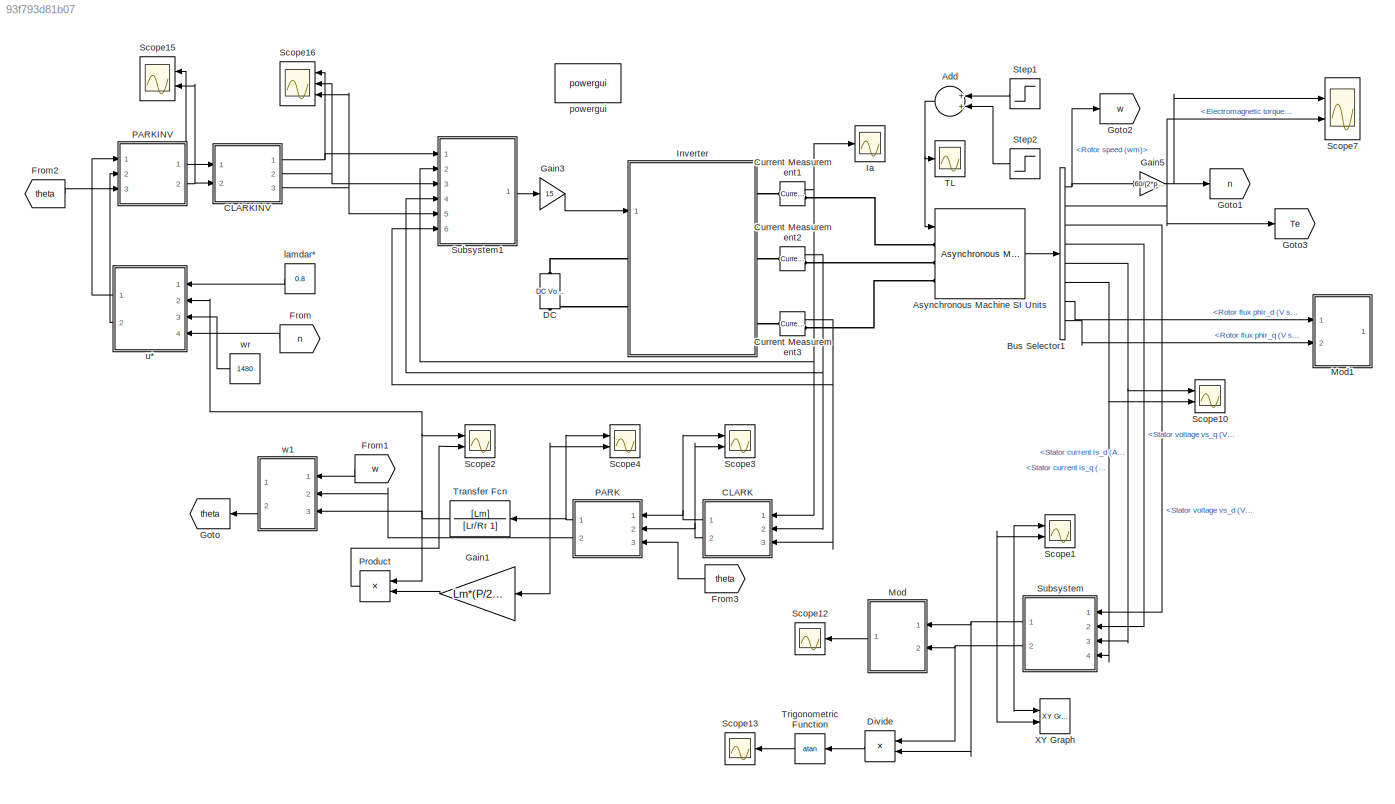
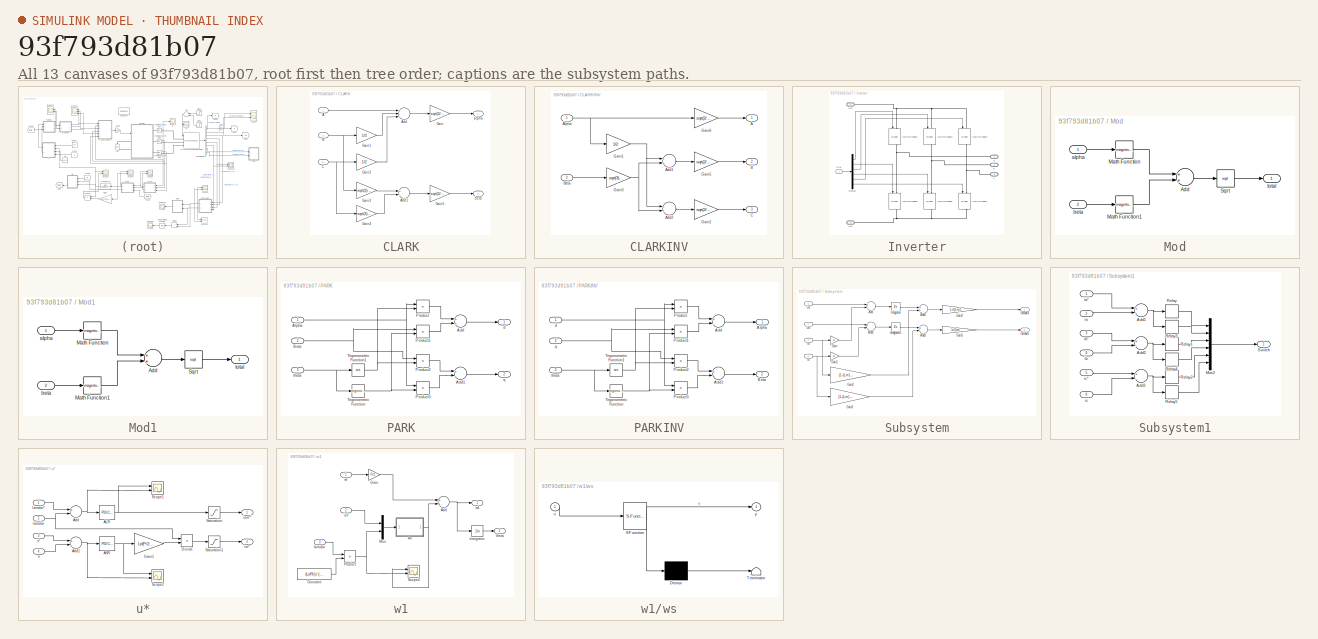
[diagram: thumbnail index - all 13 canvases of the model, root first then tree order]
MODEL slx_93f793d81b07
KIND model
CONFIG AbsTol = auto
CONFIG FixedStep = 1e-5
CONFIG MaxStep = auto
CONFIG MinStep = auto
CONFIG RelTol = 1e-3
CONFIG SampleTimeConstraint = Unconstrained
CONFIG Solver = FixedStepAuto
CONFIG SolverMode = Auto
CONFIG SolverName = FixedStepAuto
CONFIG StartTime = 0.0
CONFIG StopTime = 1
WORKSPACE source: MAT-file member
WORKSPACE Cf = 1e-05
BLOCK [Sum] Add
  InputSameDT = off
  OutDataTypeStr = Inherit: Inherit via internal rule
  Ports = [2, 1]
  SaturateOnIntegerOverflow = off
BLOCK [Reference] Asynchronous Machine SI Units  REF=powerlib/Machines/Asynchronous Machine
SI Units
  Ports = [1, 1, 0, 0, 0, 3]
  SourceBlock = powerlib/Machines/Asynchronous Machine\nSI Units
  SourceType = Asynchronous Machine
BLOCK [BusSelector] Bus Selector1
  OutputSignals = Mechanical.Rotor speed (wm),Mechanical.Electromagnetic torque Te (N*m),Stator measurements.Stator voltage vs_d (V),Stator measurements.Stator voltage vs_q (V),Stator measurements.Stator current is_d (A),Stator measurements.Stator current  is_q (A),Rotor measurements.Rotor flux phir_d (V s),Rotor measurements.Rotor flux phir_q (V s)
  Ports = [1, 8]
BLOCK [SubSystem] CLARK
  Ports = [3, 2]
  RequestExecContextInheritance = off
  Variant = off
BLOCK [Inport] CLARK/A
  IconDisplay = Port number
BLOCK [Sum] CLARK/Add
  InputSameDT = off
  Inputs = +--
  OutDataTypeStr = Inherit: Inherit via internal rule
  Ports = [3, 1]
  SaturateOnIntegerOverflow = off
BLOCK [Sum] CLARK/Add1
  InputSameDT = off
  Inputs = +-
  OutDataTypeStr = Inherit: Inherit via internal rule
  Ports = [2, 1]
  SaturateOnIntegerOverflow = off
BLOCK [Inport] CLARK/B
  IconDisplay = Port number
  Port = 2
BLOCK [Inport] CLARK/C
  IconDisplay = Port number
  Port = 3
BLOCK [Gain] CLARK/Gain
  Gain = sqrt(2/3)
  OutDataTypeStr = Inherit: Inherit via internal rule
  ParamDataTypeStr = Inherit: Inherit via internal rule
  SaturateOnIntegerOverflow = off
BLOCK [Gain] CLARK/Gain1
  Gain = 1/2
  OutDataTypeStr = Inherit: Inherit via internal rule
  ParamDataTypeStr = Inherit: Inherit via internal rule
  SaturateOnIntegerOverflow = off
BLOCK [Gain] CLARK/Gain2
  Gain = 1/2
  OutDataTypeStr = Inherit: Inherit via internal rule
  ParamDataTypeStr = Inherit: Inherit via internal rule
  SaturateOnIntegerOverflow = off
BLOCK [Gain] CLARK/Gain3
  Gain = sqrt(3)/2
  OutDataTypeStr = Inherit: Inherit via internal rule
  ParamDataTypeStr = Inherit: Inherit via internal rule
  SaturateOnIntegerOverflow = off
BLOCK [Gain] CLARK/Gain4
  Gain = sqrt(3)/2
  OutDataTypeStr = Inherit: Inherit via internal rule
  ParamDataTypeStr = Inherit: Inherit via internal rule
  SaturateOnIntegerOverflow = off
BLOCK [Gain] CLARK/Gain5
  Gain = sqrt(2/3)
  OutDataTypeStr = Inherit: Inherit via internal rule
  ParamDataTypeStr = Inherit: Inherit via internal rule
  SaturateOnIntegerOverflow = off
BLOCK [Outport] CLARK/alpha
  IconDisplay = Port number
BLOCK [Outport] CLARK/beta
  IconDisplay = Port number
  Port = 2
BLOCK [SubSystem] CLARKINV
  Ports = [2, 3]
  RequestExecContextInheritance = off
  Variant = off
BLOCK [Outport] CLARKINV/A
  IconDisplay = Port number
BLOCK [Sum] CLARKINV/Add1
  InputSameDT = off
  Inputs = -+
  OutDataTypeStr = Inherit: Inherit via internal rule
  Ports = [2, 1]
  SaturateOnIntegerOverflow = off
BLOCK [Sum] CLARKINV/Add2
  InputSameDT = off
  Inputs = --
  OutDataTypeStr = Inherit: Inherit via internal rule
  Ports = [2, 1]
  SaturateOnIntegerOverflow = off
BLOCK [Inport] CLARKINV/Alpha
  IconDisplay = Port number
BLOCK [Outport] CLARKINV/B
  IconDisplay = Port number
  Port = 2
BLOCK [Inport] CLARKINV/Beta
  IconDisplay = Port number
  Port = 2
BLOCK [Outport] CLARKINV/C
  IconDisplay = Port number
  Port = 3
BLOCK [Gain] CLARKINV/Gain1
  Gain = 1/2
  OutDataTypeStr = Inherit: Inherit via internal rule
  ParamDataTypeStr = Inherit: Inherit via internal rule
  SaturateOnIntegerOverflow = off
BLOCK [Gain] CLARKINV/Gain2
  Gain = sqrt(2/3)
  OutDataTypeStr = Inherit: Inherit via internal rule
  ParamDataTypeStr = Inherit: Inherit via internal rule
  SaturateOnIntegerOverflow = off
BLOCK [Gain] CLARKINV/Gain3
  Gain = sqrt(3)/2
  OutDataTypeStr = Inherit: Inherit via internal rule
  ParamDataTypeStr = Inherit: Inherit via internal rule
  SaturateOnIntegerOverflow = off
BLOCK [Gain] CLARKINV/Gain5
  Gain = sqrt(2/3)
  OutDataTypeStr = Inherit: Inherit via internal rule
  ParamDataTypeStr = Inherit: Inherit via internal rule
  SaturateOnIntegerOverflow = off
BLOCK [Gain] CLARKINV/Gain6
  Gain = sqrt(2/3)
  OutDataTypeStr = Inherit: Inherit via internal rule
  ParamDataTypeStr = Inherit: Inherit via internal rule
  SaturateOnIntegerOverflow = off
BLOCK [Reference] Current Measurement1  REF=powerlib/Measurements/Current Measurement
  Ports = [0, 1, 0, 0, 0, 1, 1]
  SourceBlock = powerlib/Measurements/Current Measurement
  SourceType = Current Measurement
  UserDataPersistent = on
BLOCK [Reference] Current Measurement2  REF=powerlib/Measurements/Current Measurement
  Ports = [0, 1, 0, 0, 0, 1, 1]
  SourceBlock = powerlib/Measurements/Current Measurement
  SourceType = Current Measurement
  UserDataPersistent = on
BLOCK [Reference] Current Measurement3  REF=powerlib/Measurements/Current Measurement
  Ports = [0, 1, 0, 0, 0, 1, 1]
  SourceBlock = powerlib/Measurements/Current Measurement
  SourceType = Current Measurement
  UserDataPersistent = on
BLOCK [Reference] DC  REF=powerlib/Electrical
Sources/DC Voltage Source
  Ports = [0, 0, 0, 0, 0, 1, 1]
  SourceBlock = powerlib/Electrical\nSources/DC Voltage Source
  SourceType = DC Voltage Source
BLOCK [Product] Divide
  InputSameDT = off
  Inputs = */
  OutDataTypeStr = Inherit: Inherit via internal rule
  Ports = [2, 1]
  RndMeth = Floor
  SaturateOnIntegerOverflow = off
BLOCK [From] From
  GotoTag = n
BLOCK [From] From1
  GotoTag = w
BLOCK [From] From2
  GotoTag = theta
BLOCK [From] From3
  GotoTag = theta
BLOCK [Gain] Gain1
  Gain = Lm*(P/2)/Lr
  OutDataTypeStr = Inherit: Inherit via internal rule
  ParamDataTypeStr = Inherit: Inherit via internal rule
  SaturateOnIntegerOverflow = off
BLOCK [Gain] Gain3
  Gain = 15
  OutDataTypeStr = Inherit: Inherit via internal rule
  ParamDataTypeStr = Inherit: Inherit via internal rule
  SaturateOnIntegerOverflow = off
BLOCK [Gain] Gain5
  Gain = 60/(2*pi)
  OutDataTypeStr = Inherit: Inherit via internal rule
  ParamDataTypeStr = Inherit: Inherit via internal rule
  SaturateOnIntegerOverflow = off
BLOCK [Goto] Goto
  GotoTag = theta
BLOCK [Goto] Goto1
  GotoTag = n
BLOCK [Goto] Goto2
  GotoTag = w
BLOCK [Goto] Goto3
  GotoTag = Te
BLOCK [Scope] Ia
  Ports = [1]
  ScopeSpecificationString = Simulink.scopes.TimeScopeBlockCfg('CurrentConfiguration', extmgr.ConfigurationSet(extmgr.Configuration('Core','General UI',true),extmgr.Configuration('Core','Source UI',true),extmgr.Configuration('Sources','WiredSimulink',true,'DataLoggingVariableName','ScopeData1','DataLoggingSaveFormat','Array','DataLoggingDecimation','1','DataLoggingDecimateData',true),extmgr.Configuration('Visuals','Time Domai...<+1520ch>
BLOCK [SubSystem] Inverter
  Ports = [1, 0, 0, 0, 0, 2, 3]
  RequestExecContextInheritance = off
  Variant = off
BLOCK [Demux] Inverter/Demux
  DisplayOption = bar
  Outputs = 6
  Ports = [1, 6]
BLOCK [Reference] Inverter/IGBT//Diode12  REF=powerlib/Power
Electronics/IGBT//Diode
  Ports = [1, 1, 0, 0, 0, 1, 1]
  SourceBlock = powerlib/Power\nElectronics/IGBT//Diode
  SourceType = IGBT/Diode
BLOCK [Reference] Inverter/IGBT//Diode13  REF=powerlib/Power
Electronics/IGBT//Diode
  Ports = [1, 1, 0, 0, 0, 1, 1]
  SourceBlock = powerlib/Power\nElectronics/IGBT//Diode
  SourceType = IGBT/Diode
BLOCK [Reference] Inverter/IGBT//Diode14  REF=powerlib/Power
Electronics/IGBT//Diode
  Ports = [1, 1, 0, 0, 0, 1, 1]
  SourceBlock = powerlib/Power\nElectronics/IGBT//Diode
  SourceType = IGBT/Diode
BLOCK [Reference] Inverter/IGBT//Diode15  REF=powerlib/Power
Electronics/IGBT//Diode
  Ports = [1, 1, 0, 0, 0, 1, 1]
  SourceBlock = powerlib/Power\nElectronics/IGBT//Diode
  SourceType = IGBT/Diode
BLOCK [Reference] Inverter/IGBT//Diode16  REF=powerlib/Power
Electronics/IGBT//Diode
  Ports = [1, 1, 0, 0, 0, 1, 1]
  SourceBlock = powerlib/Power\nElectronics/IGBT//Diode
  SourceType = IGBT/Diode
BLOCK [Reference] Inverter/IGBT//Diode17  REF=powerlib/Power
Electronics/IGBT//Diode
  Ports = [1, 1, 0, 0, 0, 1, 1]
  SourceBlock = powerlib/Power\nElectronics/IGBT//Diode
  SourceType = IGBT/Diode
BLOCK [Inport] Inverter/Sinv
  IconDisplay = Port number
BLOCK [PMIOPort] Inverter/Vd+
  Port = 1
  Side = Left
BLOCK [PMIOPort] Inverter/Vd-
  Port = 5
  Side = Left
BLOCK [PMIOPort] Inverter/a
  Port = 2
  Side = Right
BLOCK [PMIOPort] Inverter/b
  Port = 3
  Side = Right
BLOCK [PMIOPort] Inverter/c
  Port = 4
  Side = Right
BLOCK [SubSystem] Mod
  Ports = [2, 1]
  RequestExecContextInheritance = off
  Variant = off
BLOCK [Sum] Mod/Add
  InputSameDT = off
  OutDataTypeStr = Inherit: Inherit via internal rule
  Ports = [2, 1]
  SaturateOnIntegerOverflow = off
BLOCK [Math] Mod/Math Function
  Operator = magnitude^2
  Ports = [1, 1]
BLOCK [Math] Mod/Math Function1
  Operator = magnitude^2
  Ports = [1, 1]
BLOCK [Sqrt] Mod/Sqrt
BLOCK [Inport] Mod/alpha
  IconDisplay = Port number
BLOCK [Inport] Mod/beta
  IconDisplay = Port number
  Port = 2
BLOCK [Outport] Mod/total
  IconDisplay = Port number
BLOCK [SubSystem] Mod1
  Ports = [2, 1]
  RequestExecContextInheritance = off
  Variant = off
BLOCK [Sum] Mod1/Add
  InputSameDT = off
  OutDataTypeStr = Inherit: Inherit via internal rule
  Ports = [2, 1]
  SaturateOnIntegerOverflow = off
BLOCK [Math] Mod1/Math Function
  Operator = magnitude^2
  Ports = [1, 1]
BLOCK [Math] Mod1/Math Function1
  Operator = magnitude^2
  Ports = [1, 1]
BLOCK [Sqrt] Mod1/Sqrt
BLOCK [Inport] Mod1/alpha
  IconDisplay = Port number
BLOCK [Inport] Mod1/beta
  IconDisplay = Port number
  Port = 2
BLOCK [Outport] Mod1/total
  IconDisplay = Port number
BLOCK [SubSystem] PARK
  Ports = [3, 2]
  RequestExecContextInheritance = off
  Variant = off
BLOCK [Sum] PARK/Add
  InputSameDT = off
  OutDataTypeStr = Inherit: Inherit via internal rule
  Ports = [2, 1]
  SaturateOnIntegerOverflow = off
BLOCK [Sum] PARK/Add1
  InputSameDT = off
  Inputs = +-
  OutDataTypeStr = Inherit: Inherit via internal rule
  Ports = [2, 1]
  SaturateOnIntegerOverflow = off
BLOCK [Inport] PARK/Alpha
  IconDisplay = Port number
BLOCK [Inport] PARK/Beta
  IconDisplay = Port number
  Port = 2
BLOCK [Product] PARK/Product
  InputSameDT = off
  OutDataTypeStr = Inherit: Inherit via internal rule
  Ports = [2, 1]
  RndMeth = Floor
  SaturateOnIntegerOverflow = off
BLOCK [Product] PARK/Product1
  InputSameDT = off
  OutDataTypeStr = Inherit: Inherit via internal rule
  Ports = [2, 1]
  RndMeth = Floor
  SaturateOnIntegerOverflow = off
BLOCK [Product] PARK/Product2
  InputSameDT = off
  OutDataTypeStr = Inherit: Inherit via internal rule
  Ports = [2, 1]
  RndMeth = Floor
  SaturateOnIntegerOverflow = off
BLOCK [Product] PARK/Product3
  InputSameDT = off
  OutDataTypeStr = Inherit: Inherit via internal rule
  Ports = [2, 1]
  RndMeth = Floor
  SaturateOnIntegerOverflow = off
BLOCK [Trigonometry] PARK/Trigonometric Function
  Ports = [1, 1]
BLOCK [Trigonometry] PARK/Trigonometric Function1
  Operator = cos
  Ports = [1, 1]
BLOCK [Outport] PARK/d
  IconDisplay = Port number
BLOCK [Outport] PARK/q
  IconDisplay = Port number
  Port = 2
BLOCK [Inport] PARK/theta
  IconDisplay = Port number
  Port = 3
BLOCK [SubSystem] PARKINV
  Ports = [3, 2]
  RequestExecContextInheritance = off
  Variant = off
BLOCK [Sum] PARKINV/Add
  InputSameDT = off
  Inputs = +-
  OutDataTypeStr = Inherit: Inherit via internal rule
  Ports = [2, 1]
  SaturateOnIntegerOverflow = off
BLOCK [Sum] PARKINV/Add1
  InputSameDT = off
  OutDataTypeStr = Inherit: Inherit via internal rule
  Ports = [2, 1]
  SaturateOnIntegerOverflow = off
BLOCK [Outport] PARKINV/Alpha
  IconDisplay = Port number
BLOCK [Outport] PARKINV/Beta
  IconDisplay = Port number
  Port = 2
BLOCK [Product] PARKINV/Product
  InputSameDT = off
  OutDataTypeStr = Inherit: Inherit via internal rule
  Ports = [2, 1]
  RndMeth = Floor
  SaturateOnIntegerOverflow = off
BLOCK [Product] PARKINV/Product1
  InputSameDT = off
  OutDataTypeStr = Inherit: Inherit via internal rule
  Ports = [2, 1]
  RndMeth = Floor
  SaturateOnIntegerOverflow = off
BLOCK [Product] PARKINV/Product2
  InputSameDT = off
  OutDataTypeStr = Inherit: Inherit via internal rule
  Ports = [2, 1]
  RndMeth = Floor
  SaturateOnIntegerOverflow = off
BLOCK [Product] PARKINV/Product3
  InputSameDT = off
  OutDataTypeStr = Inherit: Inherit via internal rule
  Ports = [2, 1]
  RndMeth = Floor
  SaturateOnIntegerOverflow = off
BLOCK [Trigonometry] PARKINV/Trigonometric Function
  Ports = [1, 1]
BLOCK [Trigonometry] PARKINV/Trigonometric Function1
  Operator = cos
  Ports = [1, 1]
BLOCK [Inport] PARKINV/d
  IconDisplay = Port number
BLOCK [Inport] PARKINV/q
  IconDisplay = Port number
  Port = 2
BLOCK [Inport] PARKINV/theta
  IconDisplay = Port number
  Port = 3
BLOCK [Product] Product
  InputSameDT = off
  OutDataTypeStr = Inherit: Inherit via internal rule
  Ports = [2, 1]
  RndMeth = Floor
  SaturateOnIntegerOverflow = off
BLOCK [Scope] Scope1
  NumInputPorts = 2
  Ports = [2]
  ScopeSpecificationString = Simulink.scopes.TimeScopeBlockCfg('CurrentConfiguration', extmgr.ConfigurationSet(extmgr.Configuration('Core','General UI',true),extmgr.Configuration('Core','Source UI',true),extmgr.Configuration('Sources','WiredSimulink',true,'DataLoggingVariableName','ScopeData4'),extmgr.Configuration('Visuals','Time Domain',true,'SerializedDisplays',{struct('MinYLimReal','-0.78856','MaxYLimReal','0.78848','YLab...<+2104ch>
BLOCK [Scope] Scope10
  NumInputPorts = 2
  Ports = [2]
  ScopeSpecificationString = Simulink.scopes.TimeScopeBlockCfg('CurrentConfiguration', extmgr.ConfigurationSet(extmgr.Configuration('Core','General UI',true),extmgr.Configuration('Core','Source UI',true),extmgr.Configuration('Sources','WiredSimulink',true,'DataLoggingVariableName','ScopeData8'),extmgr.Configuration('Visuals','Time Domain',true,'SerializedDisplays',{struct('MinYLimReal','-24.64673','MaxYLimReal','11.92557','YL...<+2119ch>
BLOCK [Scope] Scope12
  Ports = [1]
  ScopeSpecificationString = Simulink.scopes.TimeScopeBlockCfg('CurrentConfiguration', extmgr.ConfigurationSet(extmgr.Configuration('Core','General UI',true),extmgr.Configuration('Core','Source UI',true),extmgr.Configuration('Sources','WiredSimulink',true,'DataLoggingVariableName','ScopeData1'),extmgr.Configuration('Visuals','Time Domain',true,'SerializedDisplays',{struct('MinYLimReal','-0.08243','MaxYLimReal','0.74185','YLab...<+1435ch>
BLOCK [Scope] Scope13
  Ports = [1]
  ScopeSpecificationString = Simulink.scopes.TimeScopeBlockCfg('CurrentConfiguration', extmgr.ConfigurationSet(extmgr.Configuration('Core','General UI',true),extmgr.Configuration('Core','Source UI',true),extmgr.Configuration('Sources','WiredSimulink',true,'DataLoggingVariableName','ScopeData2'),extmgr.Configuration('Visuals','Time Domain',true,'SerializedDisplays',{struct('MinYLimReal','-1.96336','MaxYLimReal','1.96348','YLab...<+1454ch>
BLOCK [Scope] Scope15
  NumInputPorts = 2
  Ports = [2]
  ScopeSpecificationString = Simulink.scopes.TimeScopeBlockCfg('CurrentConfiguration', extmgr.ConfigurationSet(extmgr.Configuration('Core','General UI',true),extmgr.Configuration('Core','Source UI',true),extmgr.Configuration('Sources','WiredSimulink',true,'DataLoggingVariableName','ScopeData5'),extmgr.Configuration('Visuals','Time Domain',true,'SerializedDisplays',{struct('MinYLimReal','-176.77654','MaxYLimReal','176.77668','...<+2098ch>
BLOCK [Scope] Scope16
  NumInputPorts = 3
  Ports = [3]
  ScopeSpecificationString = Simulink.scopes.TimeScopeBlockCfg('CurrentConfiguration', extmgr.ConfigurationSet(extmgr.Configuration('Core','General UI',true),extmgr.Configuration('Core','Source UI',true),extmgr.Configuration('Sources','WiredSimulink',true,'DataLoggingVariableName','ScopeData6'),extmgr.Configuration('Visuals','Time Domain',true,'SerializedDisplays',{struct('MinYLimReal','-43.30127','MaxYLimReal','43.30127','YL...<+1523ch>
BLOCK [Scope] Scope2
  NumInputPorts = 2
  Ports = [2]
  ScopeSpecificationString = Simulink.scopes.TimeScopeBlockCfg('CurrentConfiguration', extmgr.ConfigurationSet(extmgr.Configuration('Core','General UI',true),extmgr.Configuration('Core','Source UI',true),extmgr.Configuration('Sources','WiredSimulink',true,'DataLoggingVariableName','ScopeData3'),extmgr.Configuration('Visuals','Time Domain',true,'SerializedDisplays',{struct('MinYLimReal','-0.08458','MaxYLimReal','0.76119','YLab...<+2102ch>
BLOCK [Scope] Scope3
  NumInputPorts = 2
  Ports = [2]
  ScopeSpecificationString = Simulink.scopes.TimeScopeBlockCfg('CurrentConfiguration', extmgr.ConfigurationSet(extmgr.Configuration('Core','General UI',true),extmgr.Configuration('Core','Source UI',true),extmgr.Configuration('Sources','WiredSimulink',true,'DataLoggingVariableName','ScopeData6'),extmgr.Configuration('Visuals','Time Domain',true,'SerializedDisplays',{struct('MinYLimReal','-38.55071','MaxYLimReal','42.2967','YLa...<+2126ch>
BLOCK [Scope] Scope4
  NumInputPorts = 2
  Ports = [2]
  ScopeSpecificationString = Simulink.scopes.TimeScopeBlockCfg('CurrentConfiguration', extmgr.ConfigurationSet(extmgr.Configuration('Core','General UI',true),extmgr.Configuration('Core','Source UI',true),extmgr.Configuration('Sources','WiredSimulink',true,'DataLoggingVariableName','ScopeData7'),extmgr.Configuration('Visuals','Time Domain',true,'SerializedDisplays',{struct('MinYLimReal','-17.62843','MaxYLimReal','34.44172','YL...<+2099ch>
BLOCK [Scope] Scope7
  NumInputPorts = 2
  Ports = [2]
  ScopeSpecificationString = Simulink.scopes.TimeScopeBlockCfg('CurrentConfiguration', extmgr.ConfigurationSet(extmgr.Configuration('Core','General UI',true),extmgr.Configuration('Core','Source UI',true),extmgr.Configuration('Sources','WiredSimulink',true,'DataLoggingVariableName','ScopeData2'),extmgr.Configuration('Visuals','Time Domain',true,'SerializedDisplays',{struct('MinYLimReal','1474.86098','MaxYLimReal','1481.23208',...<+2148ch>
BLOCK [Step] Step1
  After = 5
  SampleTime = 0
  Time = 0.5
BLOCK [Step] Step2
  After = 2
  SampleTime = 0
  Time = 0.7
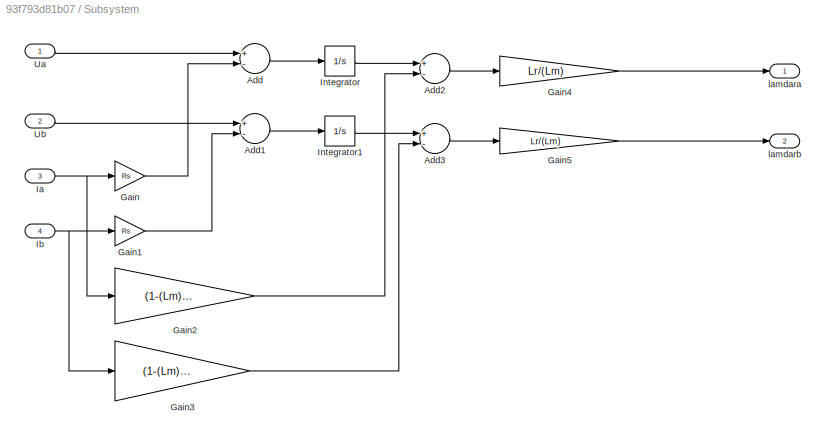
BLOCK [SubSystem] Subsystem
  Ports = [4, 2]
  RequestExecContextInheritance = off
  Variant = off
BLOCK [Sum] Subsystem/Add
  InputSameDT = off
  Inputs = +-
  OutDataTypeStr = Inherit: Inherit via internal rule
  Ports = [2, 1]
  SaturateOnIntegerOverflow = off
BLOCK [Sum] Subsystem/Add1
  InputSameDT = off
  Inputs = +-
  OutDataTypeStr = Inherit: Inherit via internal rule
  Ports = [2, 1]
  SaturateOnIntegerOverflow = off
BLOCK [Sum] Subsystem/Add2
  InputSameDT = off
  Inputs = +-
  OutDataTypeStr = Inherit: Inherit via internal rule
  Ports = [2, 1]
  SaturateOnIntegerOverflow = off
BLOCK [Sum] Subsystem/Add3
  InputSameDT = off
  Inputs = +-
  OutDataTypeStr = Inherit: Inherit via internal rule
  Ports = [2, 1]
  SaturateOnIntegerOverflow = off
BLOCK [Gain] Subsystem/Gain
  Gain = Rs
  OutDataTypeStr = Inherit: Inherit via internal rule
  ParamDataTypeStr = Inherit: Inherit via internal rule
  SaturateOnIntegerOverflow = off
BLOCK [Gain] Subsystem/Gain1
  Gain = Rs
  OutDataTypeStr = Inherit: Inherit via internal rule
  ParamDataTypeStr = Inherit: Inherit via internal rule
  SaturateOnIntegerOverflow = off
BLOCK [Gain] Subsystem/Gain2
  Gain = (1-(Lm)^2/Ls/Lr)*Ls
  OutDataTypeStr = Inherit: Inherit via internal rule
  ParamDataTypeStr = Inherit: Inherit via internal rule
  SaturateOnIntegerOverflow = off
BLOCK [Gain] Subsystem/Gain3
  Gain = (1-(Lm)^2/Ls/Lr)*Ls
  OutDataTypeStr = Inherit: Inherit via internal rule
  ParamDataTypeStr = Inherit: Inherit via internal rule
  SaturateOnIntegerOverflow = off
BLOCK [Gain] Subsystem/Gain4
  Gain = Lr/(Lm)
  OutDataTypeStr = Inherit: Inherit via internal rule
  ParamDataTypeStr = Inherit: Inherit via internal rule
  SaturateOnIntegerOverflow = off
BLOCK [Gain] Subsystem/Gain5
  Gain = Lr/(Lm)
  OutDataTypeStr = Inherit: Inherit via internal rule
  ParamDataTypeStr = Inherit: Inherit via internal rule
  SaturateOnIntegerOverflow = off
BLOCK [Inport] Subsystem/Ia
  IconDisplay = Port number
  Port = 3
BLOCK [Inport] Subsystem/Ib
  IconDisplay = Port number
  Port = 4
BLOCK [Integrator] Subsystem/Integrator
  Ports = [1, 1]
BLOCK [Integrator] Subsystem/Integrator1
  Ports = [1, 1]
BLOCK [Inport] Subsystem/Ua
  IconDisplay = Port number
BLOCK [Inport] Subsystem/Ub
  IconDisplay = Port number
  Port = 2
BLOCK [Outport] Subsystem/lamdara
  IconDisplay = Port number
BLOCK [Outport] Subsystem/lamdarb
  IconDisplay = Port number
  Port = 2
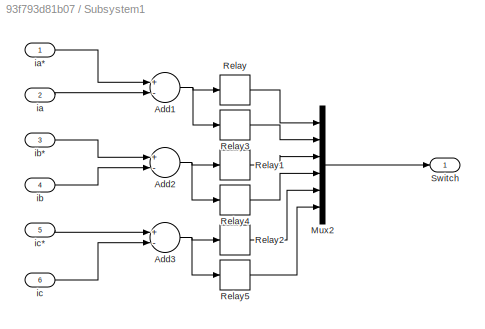
BLOCK [SubSystem] Subsystem1
  Ports = [6, 1]
  RequestExecContextInheritance = off
  Variant = off
BLOCK [Sum] Subsystem1/Add1
  InputSameDT = off
  Inputs = +-
  OutDataTypeStr = Inherit: Inherit via internal rule
  Ports = [2, 1]
  SaturateOnIntegerOverflow = off
BLOCK [Sum] Subsystem1/Add2
  InputSameDT = off
  Inputs = +-
  OutDataTypeStr = Inherit: Inherit via internal rule
  Ports = [2, 1]
  SaturateOnIntegerOverflow = off
BLOCK [Sum] Subsystem1/Add3
  InputSameDT = off
  Inputs = +-
  OutDataTypeStr = Inherit: Inherit via internal rule
  Ports = [2, 1]
  SaturateOnIntegerOverflow = off
BLOCK [Mux] Subsystem1/Mux2
  DisplayOption = bar
  Inputs = 6
  Ports = [6, 1]
BLOCK [Relay] Subsystem1/Relay
  InputProcessing = Elements as channels (sample based)
  OffSwitchValue = -0.5
  OnSwitchValue = 0.5
BLOCK [Relay] Subsystem1/Relay1
  InputProcessing = Elements as channels (sample based)
  OffSwitchValue = -0.5
  OnSwitchValue = 0.5
BLOCK [Relay] Subsystem1/Relay2
  InputProcessing = Elements as channels (sample based)
  OffSwitchValue = -0.5
  OnSwitchValue = 0.5
BLOCK [Relay] Subsystem1/Relay3
  InputProcessing = Elements as channels (sample based)
  OffOutputValue = 1
  OffSwitchValue = -0.5
  OnOutputValue = 0
  OnSwitchValue = 0.5
BLOCK [Relay] Subsystem1/Relay4
  InputProcessing = Elements as channels (sample based)
  OffOutputValue = 1
  OffSwitchValue = -0.5
  OnOutputValue = 0
  OnSwitchValue = 0.5
BLOCK [Relay] Subsystem1/Relay5
  InputProcessing = Elements as channels (sample based)
  OffOutputValue = 1
  OffSwitchValue = -0.5
  OnOutputValue = 0
  OnSwitchValue = 0.5
BLOCK [Outport] Subsystem1/Switch
  IconDisplay = Port number
BLOCK [Inport] Subsystem1/ia
  IconDisplay = Port number
  Port = 2
BLOCK [Inport] Subsystem1/ia*
  IconDisplay = Port number
BLOCK [Inport] Subsystem1/ib
  IconDisplay = Port number
  Port = 4
BLOCK [Inport] Subsystem1/ib*
  IconDisplay = Port number
  Port = 3
BLOCK [Inport] Subsystem1/ic
  IconDisplay = Port number
  Port = 6
BLOCK [Inport] Subsystem1/ic*
  IconDisplay = Port number
  Port = 5
BLOCK [Scope] TL
  Ports = [1]
  ScopeSpecificationString = C++SS(StrPVP('SaveName','ScopeData'),StrPVP('LimitDataPoints','on'),StrPVP('DataFormat','Array'),StrPVP('Decimation','1'),StrPVP('BlockParamSampleInput','off'))
BLOCK [TransferFcn] Transfer Fcn
  Denominator = [Lr/Rr 1]
  Numerator = [Lm]
BLOCK [Trigonometry] Trigonometric Function
  Operator = atan
  Ports = [1, 1]
BLOCK [Reference] XY Graph  REF=simulink/Sinks/XY Graph
  Ports = [2]
  SourceBlock = simulink/Sinks/XY Graph
  SourceType = XY scope.
BLOCK [Constant] lamdar*
  Value = 0.8
BLOCK [Reference] powergui  REF=powerlib/powergui
  Ports = []
  Priority = 1
  SourceBlock = powerlib/powergui
  SourceType = PSB option menu block
  UserDataPersistent = on
BLOCK [SubSystem] u*
  Ports = [4, 2]
  RequestExecContextInheritance = off
  Variant = off
BLOCK [Reference] u*/ALR  REF=simulink/Continuous/PID Controller
  Ports = [1, 1]
  SourceBlock = simulink/Continuous/PID Controller
  SourceType = PID 1dof
BLOCK [Reference] u*/ASR  REF=simulink/Continuous/PID Controller
  Ports = [1, 1]
  SourceBlock = simulink/Continuous/PID Controller
  SourceType = PID 1dof
BLOCK [Sum] u*/Add
  InputSameDT = off
  Inputs = +-
  OutDataTypeStr = Inherit: Inherit via internal rule
  Ports = [2, 1]
  SaturateOnIntegerOverflow = off
BLOCK [Sum] u*/Add1
  InputSameDT = off
  Inputs = +-
  OutDataTypeStr = Inherit: Inherit via internal rule
  Ports = [2, 1]
  SaturateOnIntegerOverflow = off
BLOCK [Product] u*/Divide
  InputSameDT = off
  Inputs = /*
  OutDataTypeStr = Inherit: Inherit via internal rule
  Ports = [2, 1]
  RndMeth = Floor
  SaturateOnIntegerOverflow = off
BLOCK [Gain] u*/Gain1
  Gain = Lr/(P/2*Lm)
  OutDataTypeStr = Inherit: Inherit via internal rule
  ParamDataTypeStr = Inherit: Inherit via internal rule
  SaturateOnIntegerOverflow = off
BLOCK [Saturate] u*/Saturation
  InputPortMap = u0
  LowerLimit = -30
  Ports = [1, 1]
  UpperLimit = 30
BLOCK [Saturate] u*/Saturation1
  InputPortMap = u0
  LowerLimit = 0
  Ports = [1, 1]
  UpperLimit = 9
BLOCK [Scope] u*/Scope1
  NumInputPorts = 2
  Ports = [2]
  ScopeSpecificationString = Simulink.scopes.TimeScopeBlockCfg('CurrentConfiguration', extmgr.ConfigurationSet(extmgr.Configuration('Core','General UI',true),extmgr.Configuration('Core','Source UI',true),extmgr.Configuration('Sources','WiredSimulink',true,'DataLoggingVariableName','ScopeData4'),extmgr.Configuration('Visuals','Time Domain',true,'SerializedDisplays',{struct('MinYLimReal','-250.00000','MaxYLimReal','250.00000','...<+2071ch>
BLOCK [Scope] u*/Scope2
  NumInputPorts = 2
  Ports = [2]
  ScopeSpecificationString = Simulink.scopes.TimeScopeBlockCfg('CurrentConfiguration', extmgr.ConfigurationSet(extmgr.Configuration('Core','General UI',true),extmgr.Configuration('Core','Source UI',true),extmgr.Configuration('Sources','WiredSimulink',true,'DataLoggingVariableName','ScopeData7'),extmgr.Configuration('Visuals','Time Domain',true,'SerializedDisplays',{struct('MinYLimReal','-250.00000','MaxYLimReal','250.00000','...<+2071ch>
BLOCK [Outport] u*/ism*
  IconDisplay = Port number
BLOCK [Outport] u*/ist*
  IconDisplay = Port number
  Port = 2
BLOCK [Inport] u*/lamdar
  IconDisplay = Port number
  Port = 2
BLOCK [Inport] u*/lamdar*
  IconDisplay = Port number
BLOCK [Inport] u*/n
  IconDisplay = Port number
  Port = 4
BLOCK [Inport] u*/n*
  IconDisplay = Port number
  Port = 3
BLOCK [SubSystem] w1
  Ports = [3, 2]
  RequestExecContextInheritance = off
  Variant = off
BLOCK [Sum] w1/Add
  InputSameDT = off
  OutDataTypeStr = Inherit: Inherit via internal rule
  Ports = [2, 1]
  SaturateOnIntegerOverflow = off
BLOCK [Constant] w1/Constant
  Value = (Lr/Rr) / (Lm)
BLOCK [Gain] w1/Gain
  Gain = P/2
  OutDataTypeStr = Inherit: Inherit via internal rule
  ParamDataTypeStr = Inherit: Inherit via internal rule
  SaturateOnIntegerOverflow = off
BLOCK [Integrator] w1/Integrator
  Ports = [1, 1]
BLOCK [Mux] w1/Mux
  DisplayOption = bar
  Inputs = 2
  Ports = [2, 1]
BLOCK [Product] w1/Product
  InputSameDT = off
  OutDataTypeStr = Inherit: Inherit via internal rule
  Ports = [2, 1]
  RndMeth = Floor
  SaturateOnIntegerOverflow = off
BLOCK [Scope] w1/Scope4
  NumInputPorts = 2
  Ports = [2]
  ScopeSpecificationString = Simulink.scopes.TimeScopeBlockCfg('CurrentConfiguration', extmgr.ConfigurationSet(extmgr.Configuration('Core','General UI',true),extmgr.Configuration('Core','Source UI',true),extmgr.Configuration('Sources','WiredSimulink',true,'DataLoggingVariableName','ScopeData4'),extmgr.Configuration('Visuals','Time Domain',true,'SerializedDisplays',{struct('MinYLimReal','231.2448','MaxYLimReal','464.8254','YLa...<+2095ch>
BLOCK [Inport] w1/ist
  IconDisplay = Port number
  Port = 2
BLOCK [Inport] w1/lamdar
  IconDisplay = Port number
  Port = 3
BLOCK [Outport] w1/theta
  IconDisplay = Port number
  Port = 2
BLOCK [Outport] w1/w1
  IconDisplay = Port number
BLOCK [Inport] w1/wr
  IconDisplay = Port number
BLOCK [SubSystem] w1/ws
  ErrorFcn = Stateflow.Translate.translate
  PermitHierarchicalResolution = ExplicitOnly
  Ports = [1, 1]
  RequestExecContextInheritance = off
  SFBlockType = MATLAB Function
  TreatAsAtomicUnit = on
  Variant = off
BLOCK [Demux] w1/ws/ Demux 
  Outputs = 1
  Ports = [1, 1]
BLOCK [S-Function] w1/ws/ SFunction 
  EnableBusSupport = on
  FunctionName = sf_sfun
  PortCounts = [1 2]
  Ports = [1, 2]
  SFunctionDeploymentMode = off
  Tag = Stateflow S-Function FOC 2
BLOCK [Terminator] w1/ws/ Terminator 
BLOCK [Inport] w1/ws/u
  IconDisplay = Port number
BLOCK [Outport] w1/ws/y
  IconDisplay = Port number
BLOCK [Constant] wr
  Value = 1480
NET Add:1 -> Asynchronous Machine SI Units:1, TL:1
LINE Asynchronous Machine SI Units:1 -> Bus Selector1:1
NET Bus Selector1:1 -> Gain5:1, Goto2:1
NET Bus Selector1:2 -> Goto3:1, Scope7:2
LINE Bus Selector1:3 -> Subsystem:1
LINE Bus Selector1:4 -> Subsystem:2
NET Bus Selector1:5 -> Scope10:1, Subsystem:3
NET Bus Selector1:6 -> Scope10:2, Subsystem:4
LINE Bus Selector1:7 -> Mod1:1
LINE Bus Selector1:8 -> Mod1:2
LINE CLARK/A:1 -> CLARK/Add:1
LINE CLARK/Add1:1 -> CLARK/Gain5:1
LINE CLARK/Add:1 -> CLARK/Gain:1
NET CLARK/B:1 -> CLARK/Gain1:1, CLARK/Gain3:1
NET CLARK/C:1 -> CLARK/Gain2:1, CLARK/Gain4:1
LINE CLARK/Gain1:1 -> CLARK/Add:2
LINE CLARK/Gain2:1 -> CLARK/Add:3
LINE CLARK/Gain3:1 -> CLARK/Add1:1
LINE CLARK/Gain4:1 -> CLARK/Add1:2
LINE CLARK/Gain5:1 -> CLARK/beta:1
LINE CLARK/Gain:1 -> CLARK/alpha:1
NET CLARK:1 -> PARK:1, Scope3:1
NET CLARK:2 -> PARK:2, Scope3:2
LINE CLARKINV/Add1:1 -> CLARKINV/Gain5:1
LINE CLARKINV/Add2:1 -> CLARKINV/Gain2:1
NET CLARKINV/Alpha:1 -> CLARKINV/Gain1:1, CLARKINV/Gain6:1
LINE CLARKINV/Beta:1 -> CLARKINV/Gain3:1
NET CLARKINV/Gain1:1 -> CLARKINV/Add1:1, CLARKINV/Add2:1
LINE CLARKINV/Gain2:1 -> CLARKINV/C:1
NET CLARKINV/Gain3:1 -> CLARKINV/Add1:2, CLARKINV/Add2:2
LINE CLARKINV/Gain5:1 -> CLARKINV/B:1
LINE CLARKINV/Gain6:1 -> CLARKINV/A:1
NET CLARKINV:1 -> Scope16:1, Subsystem1:1
NET CLARKINV:2 -> Scope16:2, Subsystem1:3
NET CLARKINV:3 -> Scope16:3, Subsystem1:5
NET Current Measurement1:1 -> CLARK:1, Ia:1, Subsystem1:2
NET Current Measurement2:1 -> CLARK:2, Subsystem1:4
NET Current Measurement3:1 -> CLARK:3, Subsystem1:6
LINE Divide:1 -> Trigonometric Function:1
LINE From1:1 -> w1:1
LINE From2:1 -> PARKINV:3
LINE From3:1 -> PARK:3
LINE From:1 -> u*:4
LINE Gain1:1 -> Product:2
LINE Gain3:1 -> Inverter:1
NET Gain5:1 -> Goto1:1, Scope7:1
LINE Inverter/Demux:1 -> Inverter/IGBT//Diode12:1
LINE Inverter/Demux:2 -> Inverter/IGBT//Diode15:1
LINE Inverter/Demux:3 -> Inverter/IGBT//Diode13:1
LINE Inverter/Demux:4 -> Inverter/IGBT//Diode16:1
LINE Inverter/Demux:5 -> Inverter/IGBT//Diode14:1
LINE Inverter/Demux:6 -> Inverter/IGBT//Diode17:1
LINE Inverter/Sinv:1 -> Inverter/Demux:1
LINE Mod/Add:1 -> Mod/Sqrt:1
LINE Mod/Math Function1:1 -> Mod/Add:2
LINE Mod/Math Function:1 -> Mod/Add:1
LINE Mod/Sqrt:1 -> Mod/total:1
LINE Mod/alpha:1 -> Mod/Math Function:1
LINE Mod/beta:1 -> Mod/Math Function1:1
LINE Mod1/Add:1 -> Mod1/Sqrt:1
LINE Mod1/Math Function1:1 -> Mod1/Add:2
LINE Mod1/Math Function:1 -> Mod1/Add:1
LINE Mod1/Sqrt:1 -> Mod1/total:1
LINE Mod1/alpha:1 -> Mod1/Math Function:1
LINE Mod1/beta:1 -> Mod1/Math Function1:1
LINE Mod:1 -> Scope12:1
LINE PARK/Add1:1 -> PARK/q:1
LINE PARK/Add:1 -> PARK/d:1
NET PARK/Alpha:1 -> PARK/Product3:1, PARK/Product:1
NET PARK/Beta:1 -> PARK/Product1:1, PARK/Product2:1
LINE PARK/Product1:1 -> PARK/Add:2
LINE PARK/Product2:1 -> PARK/Add1:1
LINE PARK/Product3:1 -> PARK/Add1:2
LINE PARK/Product:1 -> PARK/Add:1
NET PARK/Trigonometric Function1:1 -> PARK/Product2:2, PARK/Product:2
NET PARK/Trigonometric Function:1 -> PARK/Product1:2, PARK/Product3:2
NET PARK/theta:1 -> PARK/Trigonometric Function1:1, PARK/Trigonometric Function:1
NET PARK:1 -> Scope4:1, Transfer Fcn:1
NET PARK:2 -> Gain1:1, Scope4:2, w1:2
LINE PARKINV/Add1:1 -> PARKINV/Beta:1
LINE PARKINV/Add:1 -> PARKINV/Alpha:1
LINE PARKINV/Product1:1 -> PARKINV/Add:2
LINE PARKINV/Product2:1 -> PARKINV/Add1:1
LINE PARKINV/Product3:1 -> PARKINV/Add1:2
LINE PARKINV/Product:1 -> PARKINV/Add:1
NET PARKINV/Trigonometric Function1:1 -> PARKINV/Product2:2, PARKINV/Product:2
NET PARKINV/Trigonometric Function:1 -> PARKINV/Product1:2, PARKINV/Product3:2
NET PARKINV/d:1 -> PARKINV/Product3:1, PARKINV/Product:1
NET PARKINV/q:1 -> PARKINV/Product1:1, PARKINV/Product2:1
NET PARKINV/theta:1 -> PARKINV/Trigonometric Function1:1, PARKINV/Trigonometric Function:1
NET PARKINV:1 -> CLARKINV:1, Scope15:1
NET PARKINV:2 -> CLARKINV:2, Scope15:2
LINE Product:1 -> Scope2:2
LINE Step1:1 -> Add:1
LINE Step2:1 -> Add:2
LINE Subsystem/Add1:1 -> Subsystem/Integrator1:1
LINE Subsystem/Add2:1 -> Subsystem/Gain4:1
LINE Subsystem/Add3:1 -> Subsystem/Gain5:1
LINE Subsystem/Add:1 -> Subsystem/Integrator:1
LINE Subsystem/Gain1:1 -> Subsystem/Add1:2
LINE Subsystem/Gain2:1 -> Subsystem/Add2:2
LINE Subsystem/Gain3:1 -> Subsystem/Add3:2
LINE Subsystem/Gain4:1 -> Subsystem/lamdara:1
LINE Subsystem/Gain5:1 -> Subsystem/lamdarb:1
LINE Subsystem/Gain:1 -> Subsystem/Add:2
NET Subsystem/Ia:1 -> Subsystem/Gain2:1, Subsystem/Gain:1
NET Subsystem/Ib:1 -> Subsystem/Gain1:1, Subsystem/Gain3:1
LINE Subsystem/Integrator1:1 -> Subsystem/Add3:1
LINE Subsystem/Integrator:1 -> Subsystem/Add2:1
LINE Subsystem/Ua:1 -> Subsystem/Add:1
LINE Subsystem/Ub:1 -> Subsystem/Add1:1
NET Subsystem1/Add1:1 -> Subsystem1/Relay3:1, Subsystem1/Relay:1
NET Subsystem1/Add2:1 -> Subsystem1/Relay1:1, Subsystem1/Relay4:1
NET Subsystem1/Add3:1 -> Subsystem1/Relay2:1, Subsystem1/Relay5:1
LINE Subsystem1/Mux2:1 -> Subsystem1/Switch:1
LINE Subsystem1/Relay1:1 -> Subsystem1/Mux2:3
LINE Subsystem1/Relay2:1 -> Subsystem1/Mux2:5
LINE Subsystem1/Relay3:1 -> Subsystem1/Mux2:2
LINE Subsystem1/Relay4:1 -> Subsystem1/Mux2:4
LINE Subsystem1/Relay5:1 -> Subsystem1/Mux2:6
LINE Subsystem1/Relay:1 -> Subsystem1/Mux2:1
LINE Subsystem1/ia*:1 -> Subsystem1/Add1:1
LINE Subsystem1/ia:1 -> Subsystem1/Add1:2
LINE Subsystem1/ib*:1 -> Subsystem1/Add2:1
LINE Subsystem1/ib:1 -> Subsystem1/Add2:2
LINE Subsystem1/ic*:1 -> Subsystem1/Add3:1
LINE Subsystem1/ic:1 -> Subsystem1/Add3:2
LINE Subsystem1:1 -> Gain3:1
NET Subsystem:1 -> Divide:2, Mod:1, Scope1:1, XY Graph:1
NET Subsystem:2 -> Divide:1, Mod:2, Scope1:2, XY Graph:2
NET Transfer Fcn:1 -> Product:1, Scope2:1, u*:2, w1:3
LINE Trigonometric Function:1 -> Scope13:1
LINE lamdar*:1 -> u*:1
NET u*/ALR:1 -> u*/Saturation:1, u*/Scope1:1
NET u*/ASR:1 -> u*/Gain1:1, u*/Scope2:1
NET u*/Add1:1 -> u*/ASR:1, u*/Scope2:2
NET u*/Add:1 -> u*/ALR:1, u*/Scope1:2
LINE u*/Divide:1 -> u*/Saturation1:1
LINE u*/Gain1:1 -> u*/Divide:2
LINE u*/Saturation1:1 -> u*/ist*:1
LINE u*/Saturation:1 -> u*/ism*:1
LINE u*/lamdar*:1 -> u*/Add:1
NET u*/lamdar:1 -> u*/Add:2, u*/Divide:1
LINE u*/n*:1 -> u*/Add1:1
LINE u*/n:1 -> u*/Add1:2
LINE u*:1 -> PARKINV:1
LINE u*:2 -> PARKINV:2
NET w1/Add:1 -> w1/Integrator:1, w1/w1:1
LINE w1/Constant:1 -> w1/Product:2
LINE w1/Gain:1 -> w1/Add:1
LINE w1/Integrator:1 -> w1/theta:1
LINE w1/Mux:1 -> w1/ws:1
NET w1/Product:1 -> w1/Mux:2, w1/Scope4:2
LINE w1/ist:1 -> w1/Mux:1
LINE w1/lamdar:1 -> w1/Product:1
LINE w1/wr:1 -> w1/Gain:1
NET w1/ws:1 -> w1/Add:2, w1/Scope4:1
LINE w1:2 -> Goto:1
LINE wr:1 -> u*:3
PLINE Asynchronous Machine SI Units:LConn1 -- Current Measurement1:RConn1
PLINE Asynchronous Machine SI Units:LConn2 -- Current Measurement2:RConn1
PLINE Asynchronous Machine SI Units:LConn3 -- Current Measurement3:RConn1
PLINE Current Measurement1:LConn1 -- Inverter:RConn1
PLINE Current Measurement2:LConn1 -- Inverter:RConn2
PLINE Current Measurement3:LConn1 -- Inverter:RConn3
PLINE DC:LConn1 -- Inverter:LConn2
PLINE DC:RConn1 -- Inverter:LConn1
PNET net1: Inverter/IGBT//Diode12:LConn1 -- Inverter/IGBT//Diode13:LConn1 -- Inverter/IGBT//Diode14:LConn1 -- Inverter/Vd+:RConn1
PNET net2: Inverter/IGBT//Diode12:RConn1 -- Inverter/IGBT//Diode15:LConn1 -- Inverter/a:RConn1
PNET net3: Inverter/IGBT//Diode13:RConn1 -- Inverter/IGBT//Diode16:LConn1 -- Inverter/b:RConn1
PNET net4: Inverter/IGBT//Diode14:RConn1 -- Inverter/IGBT//Diode17:LConn1 -- Inverter/c:RConn1
PNET net5: Inverter/IGBT//Diode15:RConn1 -- Inverter/IGBT//Diode16:RConn1 -- Inverter/IGBT//Diode17:RConn1 -- Inverter/Vd-:RConn1
note: NET lines group one-source signal fan-out (src -> all destinations, sorted); 1:1 wires keep LINE; PNET lines group multi-terminal physical nets as a canonical sorted terminal list (undirected conserving connections); 2-terminal nets keep the pairwise PLINE form
CHART w1/ws states=1 transitions=1
  STATE_LABEL 'eML_blk_kernel()'
  STATE_LABEL 'SCRIPT:\nfunction y = fcn(u)\nif (u(2) > 1e-6)\n    y = u(1) / u(2);\nelse\n    y = 0;\nend'
